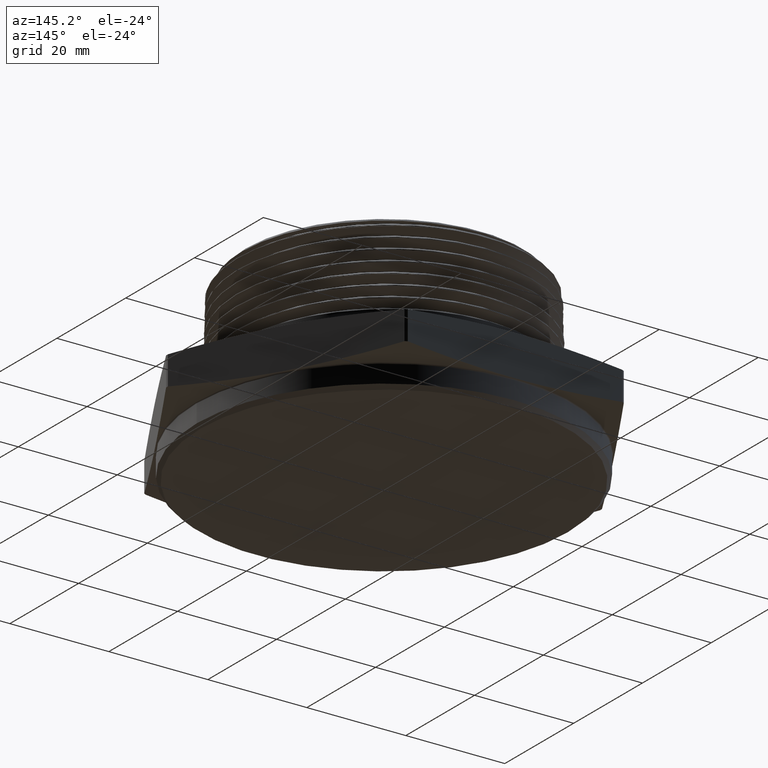
[diagram: clean part render]
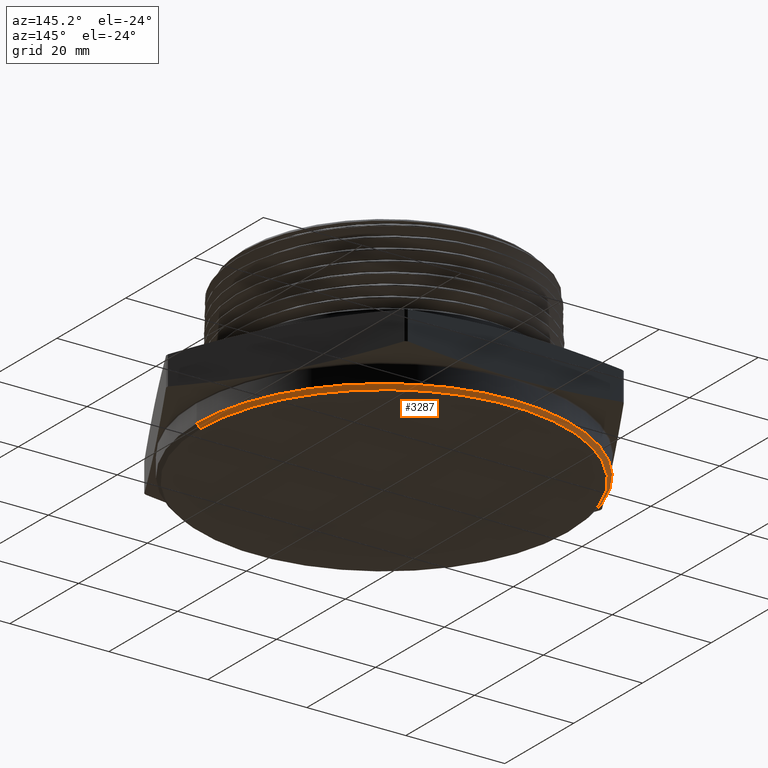
[diagram: same view with one face highlighted and labeled with its STEP entity id]
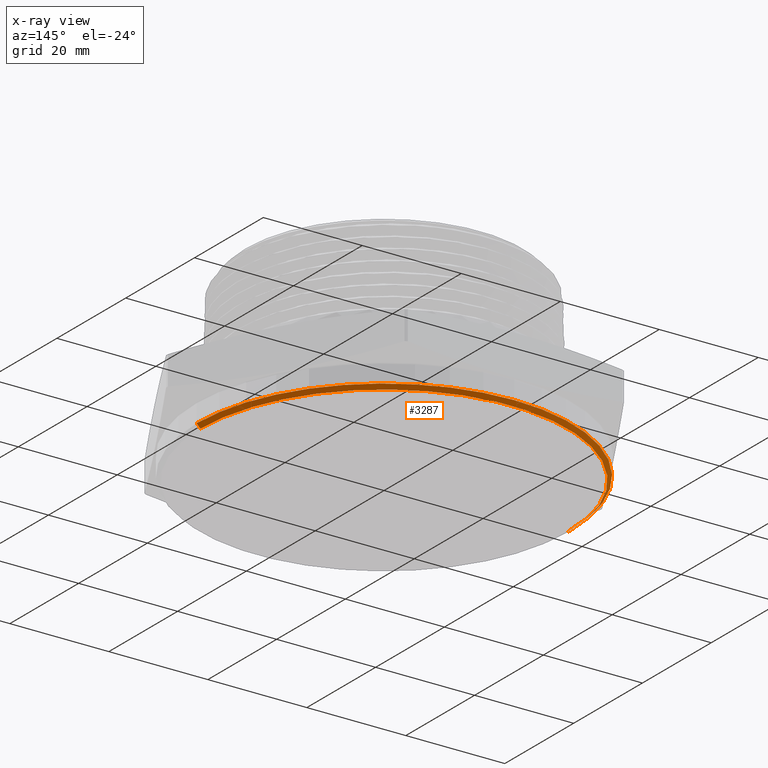
[diagram: x-ray of the same camera — body ghosted, the highlighted face saturated]
A machine part, auxiliary view. The second image highlights one B-rep face of the part: STEP entity #3287.
The next image is the same camera in x-ray: the body ghosted, the highlighted face saturated — about 0% of this face is hidden behind the body in this view.
In plain terms, the highlighted conical surface has half-angle 45 deg.
Its self-contained STEP definition (entity closure, byte-faithful):
#183 = VERTEX_POINT ( 'NONE', #887 ) ;
#186 = VERTEX_POINT ( 'NONE', #888 ) ;
#339 = LINE ( 'NONE', #1540, #7459 ) ;
#736 = CARTESIAN_POINT ( 'NONE',  ( 1.460000000000002000, 0.0000000000000000000, -0.1799999999999999900 ) ) ;
#738 = CARTESIAN_POINT ( 'NONE',  ( 1.490000000000000400, 0.0000000000000000000, -0.1500000000000016900 ) ) ;
#792 = DIRECTION ( 'NONE',  ( 1.000000000000000000, 0.0000000000000000000, 0.0000000000000000000 ) ) ;
#793 = CARTESIAN_POINT ( 'NONE',  ( 0.0000000000000000000, 0.0000000000000000000, -0.1799999999999999900 ) ) ;
#794 = DIRECTION ( 'NONE',  ( 0.0000000000000000000, 0.0000000000000000000, 1.000000000000000000 ) ) ;
#849 = VERTEX_POINT ( 'NONE', #736 ) ;
#855 = VERTEX_POINT ( 'NONE', #738 ) ;
#861 = EDGE_LOOP ( 'NONE', ( #3033, #3034, #3035, #3036 ) ) ;
#873 = FACE_OUTER_BOUND ( 'NONE', #861, .T. ) ;
#887 = CARTESIAN_POINT ( 'NONE',  ( -1.460000000000002000, 1.806354028742347500E-016, -0.1799999999999999900 ) ) ;
#888 = CARTESIAN_POINT ( 'NONE',  ( -1.490000000000000400, 1.824723730729556900E-016, -0.1500000000000016900 ) ) ;
#1488 = DIRECTION ( 'NONE',  ( -0.7071067811865507900, 8.659560562354973500E-017, 0.7071067811865443500 ) ) ;
#1489 = CARTESIAN_POINT ( 'NONE',  ( -1.460000000000002000, 1.787984326755137900E-016, -0.1799999999999999900 ) ) ;
#1492 = CARTESIAN_POINT ( 'NONE',  ( 0.0000000000000000000, 0.0000000000000000000, -0.1799999999999999900 ) ) ;
#1493 = DIRECTION ( 'NONE',  ( 0.0000000000000000000, 0.0000000000000000000, -1.000000000000000000 ) ) ;
#1494 = DIRECTION ( 'NONE',  ( -1.000000000000000000, 0.0000000000000000000, 0.0000000000000000000 ) ) ;
#1498 = CARTESIAN_POINT ( 'NONE',  ( 0.0000000000000000000, 0.0000000000000000000, -0.1500000000000016900 ) ) ;
#1499 = DIRECTION ( 'NONE',  ( 0.0000000000000000000, 0.0000000000000000000, 1.000000000000000000 ) ) ;
#1500 = DIRECTION ( 'NONE',  ( -1.000000000000000000, 0.0000000000000000000, 0.0000000000000000000 ) ) ;
#1540 = CARTESIAN_POINT ( 'NONE',  ( 1.460000000000002000, 0.0000000000000000000, -0.1799999999999999900 ) ) ;
#1547 = DIRECTION ( 'NONE',  ( 0.7071067811865507900, 0.0000000000000000000, 0.7071067811865443500 ) ) ;
#2857 = CONICAL_SURFACE ( 'NONE', #5787, 1.460000000000002000, 0.7853981633974528300 ) ;
#3033 = ORIENTED_EDGE ( 'NONE', *, *, #5719, .F. ) ;
#3034 = ORIENTED_EDGE ( 'NONE', *, *, #5720, .T. ) ;
#3035 = ORIENTED_EDGE ( 'NONE', *, *, #5721, .F. ) ;
#3036 = ORIENTED_EDGE ( 'NONE', *, *, #5737, .F. ) ;
#3287 = ADVANCED_FACE ( 'NONE', ( #873 ), #2857, .T. ) ;
#5414 = AXIS2_PLACEMENT_3D ( 'NONE', #1492, #1493, #1494 ) ;
#5415 = AXIS2_PLACEMENT_3D ( 'NONE', #1498, #1499, #1500 ) ;
#5719 = EDGE_CURVE ( 'NONE', #183, #849, #7438, .T. ) ;
#5720 = EDGE_CURVE ( 'NONE', #183, #186, #7440, .T. ) ;
#5721 = EDGE_CURVE ( 'NONE', #855, #186, #7437, .T. ) ;
#5737 = EDGE_CURVE ( 'NONE', #849, #855, #339, .T. ) ;
#5787 = AXIS2_PLACEMENT_3D ( 'NONE', #793, #794, #792 ) ;
#7437 = CIRCLE ( 'NONE', #5415, 1.490000000000000400 ) ;
#7438 = CIRCLE ( 'NONE', #5414, 1.460000000000002000 ) ;
#7440 = LINE ( 'NONE', #1489, #7442 ) ;
#7442 = VECTOR ( 'NONE', #1488, 39.37007874015748100 ) ;
#7459 = VECTOR ( 'NONE', #1547, 39.37007874015748100 ) ;